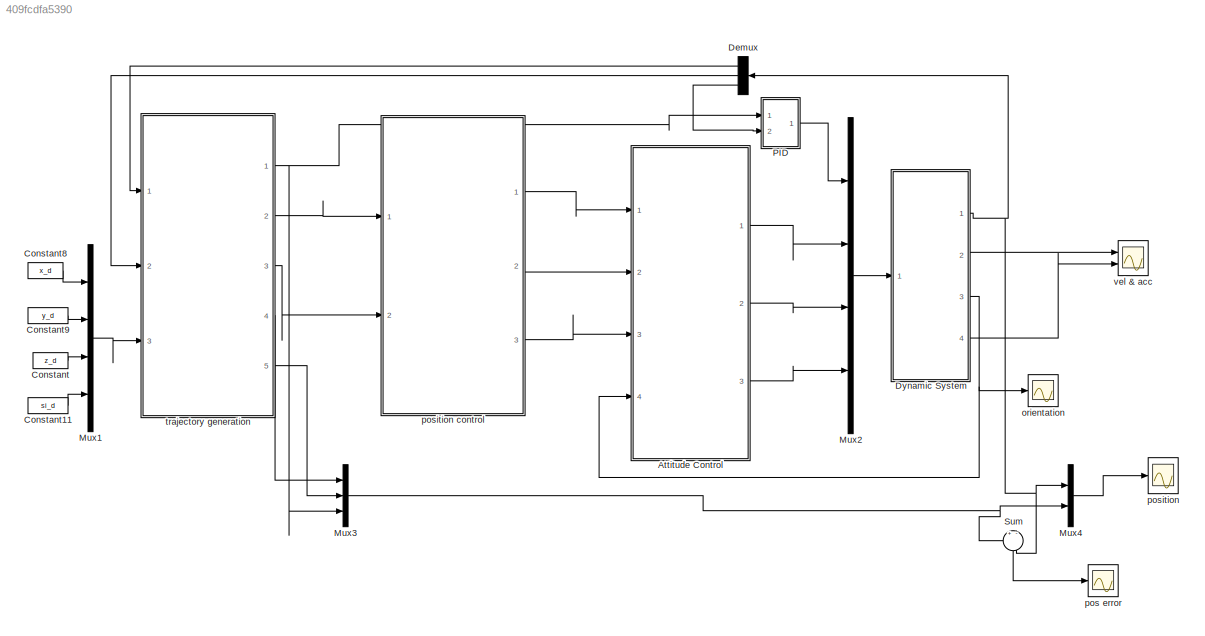
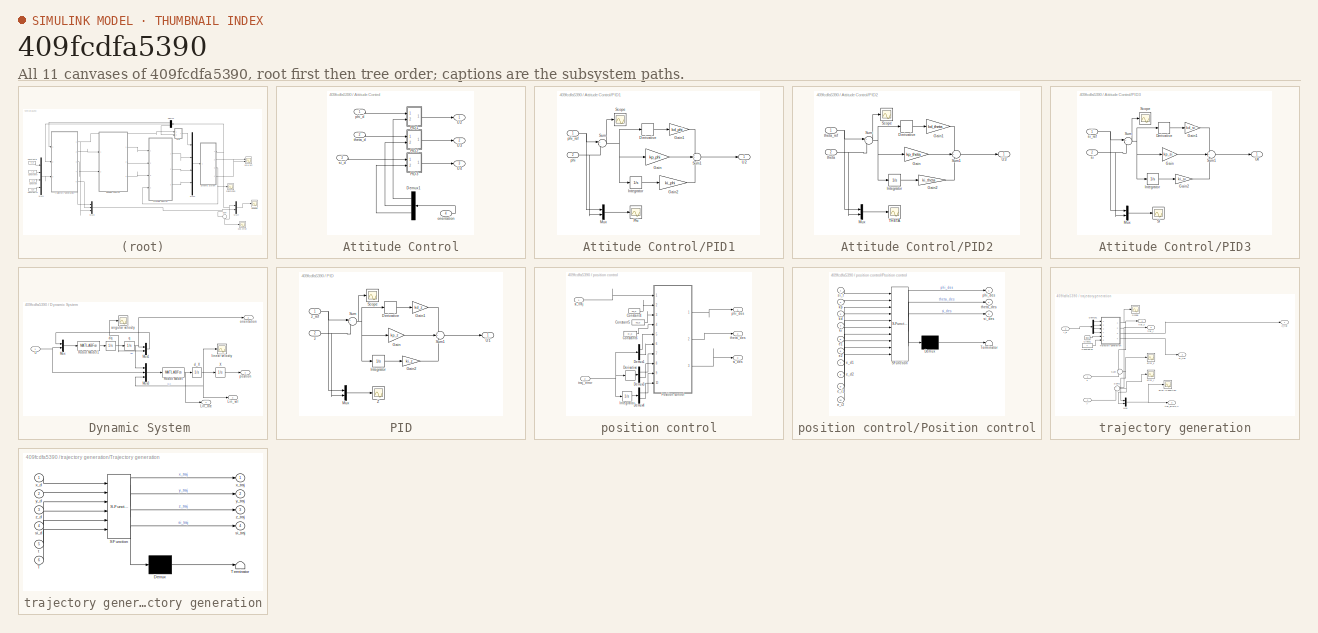
[diagram: thumbnail index - all 11 canvases of the model, root first then tree order]
MODEL slx_409fcdfa5390
KIND model
CONFIG AbsTol = auto
CONFIG EnableMultiTasking = off
CONFIG FixedStep = Ts
CONFIG MaxStep = auto
CONFIG MinStep = auto
CONFIG RelTol = 1e-3
CONFIG SampleTimeConstraint = Unconstrained
CONFIG Solver = ode2
CONFIG SolverName = ode2
CONFIG StartTime = 0.0
CONFIG StopTime = T
BLOCK [SubSystem] Attitude Control
  Ports = [4, 3]
  RequestExecContextInheritance = off
BLOCK [Demux] Attitude Control/Demux1
  DisplayOption = bar
  Outputs = 3
  Ports = [1, 3]
BLOCK [SubSystem] Attitude Control/PID1
  Ports = [2, 1]
  RequestExecContextInheritance = off
BLOCK [Derivative] Attitude Control/PID1/Derivative
BLOCK [Gain] Attitude Control/PID1/Gain
  Gain = kp_phi
  OutDataTypeStr = Inherit: Inherit via internal rule
  ParamDataTypeStr = Inherit: Inherit via internal rule
  SaturateOnIntegerOverflow = off
BLOCK [Gain] Attitude Control/PID1/Gain1
  Gain = kd_phi
  OutDataTypeStr = Inherit: Inherit via internal rule
  ParamDataTypeStr = Inherit: Inherit via internal rule
  SaturateOnIntegerOverflow = off
BLOCK [Gain] Attitude Control/PID1/Gain2
  Gain = ki_phi
  OutDataTypeStr = Inherit: Inherit via internal rule
  ParamDataTypeStr = Inherit: Inherit via internal rule
  SaturateOnIntegerOverflow = off
BLOCK [Integrator] Attitude Control/PID1/Integrator
  Ports = [1, 1]
BLOCK [Mux] Attitude Control/PID1/Mux
  DisplayOption = bar
  Inputs = 2
  Ports = [2, 1]
BLOCK [Scope] Attitude Control/PID1/Phi
  Floating = off
  NumInputPorts = 1
  Ports = [1]
  ScopeSpecificationString = Simulink.scopes.TimeScopeBlockCfg('CurrentConfiguration', extmgr.ConfigurationSet(extmgr.Configuration('Core','General UI',true),extmgr.Configuration('Core','Source UI',true),extmgr.Configuration('Sources','WiredSimulink',true,'DataLoggingVariableName','ScopeData3'),extmgr.Configuration('Visuals','Time Domain',true,'SerializedDisplays',{struct('MinYLimReal','-0.87525','MaxYLimReal','0.87526','YLab...<+1542ch>
BLOCK [Scope] Attitude Control/PID1/Scope
  Floating = off
  NumInputPorts = 1
  Ports = [1]
  ScopeSpecificationString = Simulink.scopes.TimeScopeBlockCfg('CurrentConfiguration', extmgr.ConfigurationSet(extmgr.Configuration('Core','General UI',true),extmgr.Configuration('Core','Source UI',true),extmgr.Configuration('Sources','WiredSimulink',true,'DataLoggingVariableName','ScopeData8'),extmgr.Configuration('Visuals','Time Domain',true,'SerializedDisplays',{struct('MinYLimReal','-1.26894','MaxYLimReal','0.7898','YLabe...<+1360ch>
BLOCK [Sum] Attitude Control/PID1/Sum
  IconShape = round
  InputSameDT = off
  Inputs = +-
  OutDataTypeStr = Inherit: Inherit via internal rule
  Ports = [2, 1]
  SaturateOnIntegerOverflow = off
BLOCK [Sum] Attitude Control/PID1/Sum1
  IconShape = round
  InputSameDT = off
  Inputs = +++
  OutDataTypeStr = Inherit: Inherit via internal rule
  Ports = [3, 1]
  SaturateOnIntegerOverflow = off
BLOCK [Outport] Attitude Control/PID1/U2
  IconDisplay = Port number
BLOCK [Inport] Attitude Control/PID1/phi
  IconDisplay = Port number
  Port = 2
BLOCK [Inport] Attitude Control/PID1/phi_ref
  IconDisplay = Port number
BLOCK [SubSystem] Attitude Control/PID2
  Ports = [2, 1]
  RequestExecContextInheritance = off
BLOCK [Derivative] Attitude Control/PID2/Derivative
BLOCK [Gain] Attitude Control/PID2/Gain
  Gain = kp_theta
  OutDataTypeStr = Inherit: Inherit via internal rule
  ParamDataTypeStr = Inherit: Inherit via internal rule
  SaturateOnIntegerOverflow = off
BLOCK [Gain] Attitude Control/PID2/Gain1
  Gain = kd_theta
  OutDataTypeStr = Inherit: Inherit via internal rule
  ParamDataTypeStr = Inherit: Inherit via internal rule
  SaturateOnIntegerOverflow = off
BLOCK [Gain] Attitude Control/PID2/Gain2
  Gain = ki_theta
  OutDataTypeStr = Inherit: Inherit via internal rule
  ParamDataTypeStr = Inherit: Inherit via internal rule
  SaturateOnIntegerOverflow = off
BLOCK [Integrator] Attitude Control/PID2/Integrator
  Ports = [1, 1]
BLOCK [Mux] Attitude Control/PID2/Mux
  DisplayOption = bar
  Inputs = 2
  Ports = [2, 1]
BLOCK [Scope] Attitude Control/PID2/Scope
  Floating = off
  NumInputPorts = 1
  Ports = [1]
  ScopeSpecificationString = Simulink.scopes.TimeScopeBlockCfg('CurrentConfiguration', extmgr.ConfigurationSet(extmgr.Configuration('Core','General UI',true),extmgr.Configuration('Core','Source UI',true),extmgr.Configuration('Sources','WiredSimulink',true,'DataLoggingVariableName','ScopeData2'),extmgr.Configuration('Visuals','Time Domain',true,'SerializedDisplays',{struct('MinYLimReal','-5.87071','MaxYLimReal','34.66591','YLa...<+1366ch>
BLOCK [Sum] Attitude Control/PID2/Sum
  IconShape = round
  InputSameDT = off
  Inputs = +-
  OutDataTypeStr = Inherit: Inherit via internal rule
  Ports = [2, 1]
  SaturateOnIntegerOverflow = off
BLOCK [Sum] Attitude Control/PID2/Sum1
  IconShape = round
  InputSameDT = off
  Inputs = +++
  OutDataTypeStr = Inherit: Inherit via internal rule
  Ports = [3, 1]
  SaturateOnIntegerOverflow = off
BLOCK [Scope] Attitude Control/PID2/THETA 
  Floating = off
  NumInputPorts = 1
  Ports = [1]
  ScopeSpecificationString = Simulink.scopes.TimeScopeBlockCfg('CurrentConfiguration', extmgr.ConfigurationSet(extmgr.Configuration('Core','General UI',true),extmgr.Configuration('Core','Source UI',true),extmgr.Configuration('Sources','WiredSimulink',true,'DataLoggingVariableName','ScopeData5'),extmgr.Configuration('Visuals','Time Domain',true,'SerializedDisplays',{struct('MinYLimReal','-1.2512','MaxYLimReal','1.26078','YLabe...<+1403ch>
BLOCK [Outport] Attitude Control/PID2/U3
  IconDisplay = Port number
BLOCK [Inport] Attitude Control/PID2/theta
  IconDisplay = Port number
  Port = 2
BLOCK [Inport] Attitude Control/PID2/theta_ref
  IconDisplay = Port number
BLOCK [SubSystem] Attitude Control/PID3
  Ports = [2, 1]
  RequestExecContextInheritance = off
BLOCK [Derivative] Attitude Control/PID3/Derivative
BLOCK [Gain] Attitude Control/PID3/Gain
  Gain = kp_si
  OutDataTypeStr = Inherit: Inherit via internal rule
  ParamDataTypeStr = Inherit: Inherit via internal rule
  SaturateOnIntegerOverflow = off
BLOCK [Gain] Attitude Control/PID3/Gain1
  Gain = kd_si
  OutDataTypeStr = Inherit: Inherit via internal rule
  ParamDataTypeStr = Inherit: Inherit via internal rule
  SaturateOnIntegerOverflow = off
BLOCK [Gain] Attitude Control/PID3/Gain2
  Gain = ki_si
  OutDataTypeStr = Inherit: Inherit via internal rule
  ParamDataTypeStr = Inherit: Inherit via internal rule
  SaturateOnIntegerOverflow = off
BLOCK [Integrator] Attitude Control/PID3/Integrator
  Ports = [1, 1]
BLOCK [Mux] Attitude Control/PID3/Mux
  DisplayOption = bar
  Inputs = 2
  Ports = [2, 1]
BLOCK [Scope] Attitude Control/PID3/SI
  Floating = off
  NumInputPorts = 1
  Ports = [1]
  ScopeSpecificationString = Simulink.scopes.TimeScopeBlockCfg('CurrentConfiguration', extmgr.ConfigurationSet(extmgr.Configuration('Core','General UI',true),extmgr.Configuration('Core','Source UI',true),extmgr.Configuration('Sources','WiredSimulink',true,'DataLoggingVariableName','ScopeData6'),extmgr.Configuration('Visuals','Time Domain',true,'SerializedDisplays',{struct('MinYLimReal','-0.00023','MaxYLimReal','0.00003','YLab...<+1399ch>
BLOCK [Scope] Attitude Control/PID3/Scope
  Floating = off
  NumInputPorts = 1
  Ports = [1]
  ScopeSpecificationString = Simulink.scopes.TimeScopeBlockCfg('CurrentConfiguration', extmgr.ConfigurationSet(extmgr.Configuration('Core','General UI',true),extmgr.Configuration('Core','Source UI',true),extmgr.Configuration('Sources','WiredSimulink',true,'DataLoggingVariableName','ScopeData3'),extmgr.Configuration('Visuals','Time Domain',true,'SerializedDisplays',{struct('MinYLimReal','-0.00001','MaxYLimReal','0.000058','YLa...<+1368ch>
BLOCK [Sum] Attitude Control/PID3/Sum
  IconShape = round
  InputSameDT = off
  Inputs = +-
  OutDataTypeStr = Inherit: Inherit via internal rule
  Ports = [2, 1]
  SaturateOnIntegerOverflow = off
BLOCK [Sum] Attitude Control/PID3/Sum1
  IconShape = round
  InputSameDT = off
  Inputs = +++
  OutDataTypeStr = Inherit: Inherit via internal rule
  Ports = [3, 1]
  SaturateOnIntegerOverflow = off
BLOCK [Outport] Attitude Control/PID3/U4 
  IconDisplay = Port number
BLOCK [Inport] Attitude Control/PID3/si
  IconDisplay = Port number
  Port = 2
BLOCK [Inport] Attitude Control/PID3/si_ref
  IconDisplay = Port number
BLOCK [Outport] Attitude Control/U2
  IconDisplay = Port number
BLOCK [Outport] Attitude Control/U3
  IconDisplay = Port number
  Port = 2
BLOCK [Outport] Attitude Control/U4
  IconDisplay = Port number
  Port = 3
BLOCK [Inport] Attitude Control/orientation
  IconDisplay = Port number
  Port = 4
BLOCK [Inport] Attitude Control/phi_d
  IconDisplay = Port number
BLOCK [Inport] Attitude Control/si_d
  IconDisplay = Port number
  Port = 3
BLOCK [Inport] Attitude Control/theta_d
  IconDisplay = Port number
  Port = 2
BLOCK [Constant] Constant
  Value = z_d
BLOCK [Constant] Constant11
  Value = si_d
BLOCK [Constant] Constant8
  Value = x_d
BLOCK [Constant] Constant9
  Value = y_d
BLOCK [Demux] Demux
  DisplayOption = bar
  Outputs = 3
  Ports = [1, 3]
BLOCK [SubSystem] Dynamic System 
  Ports = [1, 4]
  RequestExecContextInheritance = off
BLOCK [Outport] Dynamic System /Lin_acc
  IconDisplay = Port number
  Port = 4
BLOCK [Outport] Dynamic System /Lin_vel
  IconDisplay = Port number
  Port = 2
BLOCK [Mux] Dynamic System /Mux
  DisplayOption = bar
  Inputs = 2
  Ports = [2, 1]
BLOCK [Mux] Dynamic System /Mux1
  DisplayOption = bar
  Inputs = 2
  Ports = [2, 1]
BLOCK [Mux] Dynamic System /Mux3
  DisplayOption = bar
  Inputs = 3
  Ports = [3, 1]
BLOCK [MATLABFcn] Dynamic System /Robot Model
  MATLABFcn = dronePos(u(1:3),u(4:7),u(8:10),droneparam)
  OutputDimensions = 3
  Ports = [1, 1]
BLOCK [MATLABFcn] Dynamic System /Robot Model1
  MATLABFcn = droneOrientation(u(1:3),u(4:6),u(7:10),droneparam)
  OutputDimensions = 3
  Ports = [1, 1]
BLOCK [Inport] Dynamic System /U
  IconDisplay = Port number
BLOCK [Integrator] Dynamic System /X
  InitialCondition = droneparam.X0
  Ports = [1, 1]
BLOCK [Scope] Dynamic System /angular velocity
  Floating = off
  NumInputPorts = 1
  Ports = [1]
  ScopeSpecificationString = Simulink.scopes.TimeScopeBlockCfg('CurrentConfiguration', extmgr.ConfigurationSet(extmgr.Configuration('Core','General UI',true),extmgr.Configuration('Core','Source UI',true),extmgr.Configuration('Sources','WiredSimulink',true,'DataLoggingVariableName','ScopeData4'),extmgr.Configuration('Visuals','Time Domain',true,'SerializedDisplays',{struct('MinYLimReal','-101.86434','MaxYLimReal','55.63755','Y...<+1389ch>
BLOCK [Integrator] Dynamic System /d_X
  InitialCondition = droneparam.X0
  Ports = [1, 1]
BLOCK [Integrator] Dynamic System /dq
  InitialCondition = droneparam.q0
  Ports = [1, 1]
BLOCK [Scope] Dynamic System /linear velocity 
  Floating = off
  NumInputPorts = 1
  Ports = [1]
  ScopeSpecificationString = Simulink.scopes.TimeScopeBlockCfg('CurrentConfiguration', extmgr.ConfigurationSet(extmgr.Configuration('Core','General UI',true),extmgr.Configuration('Core','Source UI',true),extmgr.Configuration('Sources','WiredSimulink',true,'DataLoggingVariableName','ScopeData2'),extmgr.Configuration('Visuals','Time Domain',true,'SerializedDisplays',{struct('MinYLimReal','-28.48335','MaxYLimReal','45.43392','YL...<+1412ch>
BLOCK [Outport] Dynamic System /orientation
  IconDisplay = Port number
  Port = 3
BLOCK [Outport] Dynamic System /position 
  IconDisplay = Port number
BLOCK [Integrator] Dynamic System /q
  InitialCondition = droneparam.q0
  Ports = [1, 1]
BLOCK [Mux] Mux1
  DisplayOption = bar
  Ports = [4, 1]
BLOCK [Mux] Mux2
  DisplayOption = bar
  Ports = [4, 1]
BLOCK [Mux] Mux3
  DisplayOption = bar
  Inputs = 3
  Ports = [3, 1]
BLOCK [Mux] Mux4
  DisplayOption = bar
  Inputs = 2
  Ports = [2, 1]
BLOCK [SubSystem] PID
  Ports = [2, 1]
  RequestExecContextInheritance = off
BLOCK [Derivative] PID/Derivative
BLOCK [Gain] PID/Gain
  Gain = kp_z
  OutDataTypeStr = Inherit: Inherit via internal rule
  ParamDataTypeStr = Inherit: Inherit via internal rule
  SaturateOnIntegerOverflow = off
BLOCK [Gain] PID/Gain1
  Gain = kd_z
  OutDataTypeStr = Inherit: Inherit via internal rule
  ParamDataTypeStr = Inherit: Inherit via internal rule
  SaturateOnIntegerOverflow = off
BLOCK [Gain] PID/Gain2
  Gain = ki_z
  OutDataTypeStr = Inherit: Inherit via internal rule
  ParamDataTypeStr = Inherit: Inherit via internal rule
  SaturateOnIntegerOverflow = off
BLOCK [Integrator] PID/Integrator
  Ports = [1, 1]
BLOCK [Mux] PID/Mux
  DisplayOption = bar
  Inputs = 2
  Ports = [2, 1]
BLOCK [Scope] PID/Scope
  Floating = off
  NumInputPorts = 1
  Ports = [1]
  ScopeSpecificationString = Simulink.scopes.TimeScopeBlockCfg('CurrentConfiguration', extmgr.ConfigurationSet(extmgr.Configuration('Core','General UI',true),extmgr.Configuration('Core','Source UI',true),extmgr.Configuration('Sources','WiredSimulink',true,'DataLoggingVariableName','ScopeData1'),extmgr.Configuration('Visuals','Time Domain',true,'SerializedDisplays',{struct('MinYLimReal','-17.03986','MaxYLimReal','57.44887','YL...<+1368ch>
BLOCK [Sum] PID/Sum
  IconShape = round
  InputSameDT = off
  Inputs = +-
  OutDataTypeStr = Inherit: Inherit via internal rule
  Ports = [2, 1]
  SaturateOnIntegerOverflow = off
BLOCK [Sum] PID/Sum1
  IconShape = round
  InputSameDT = off
  Inputs = +++
  OutDataTypeStr = Inherit: Inherit via internal rule
  Ports = [3, 1]
  SaturateOnIntegerOverflow = off
BLOCK [Outport] PID/U1
  IconDisplay = Port number
BLOCK [Scope] PID/Z
  Floating = off
  NumInputPorts = 1
  Ports = [1]
  ScopeSpecificationString = Simulink.scopes.TimeScopeBlockCfg('CurrentConfiguration', extmgr.ConfigurationSet(extmgr.Configuration('Core','General UI',true),extmgr.Configuration('Core','Source UI',true),extmgr.Configuration('Sources','WiredSimulink',true,'DataLoggingVariableName','ScopeData4'),extmgr.Configuration('Visuals','Time Domain',true),extmgr.Configuration('Tools','Plot Navigation',true),extmgr.Configuration('Tools',...<+40ch>
BLOCK [Inport] PID/z
  IconDisplay = Port number
  Port = 2
BLOCK [Inport] PID/z_ref
  IconDisplay = Port number
BLOCK [Sum] Sum
  IconShape = round
  InputSameDT = off
  Inputs = +-
  OutDataTypeStr = Inherit: Inherit via internal rule
  Ports = [2, 1]
  SaturateOnIntegerOverflow = off
BLOCK [Scope] orientation
  Floating = off
  NumInputPorts = 1
  Ports = [1]
  ScopeSpecificationString = Simulink.scopes.TimeScopeBlockCfg('CurrentConfiguration', extmgr.ConfigurationSet(extmgr.Configuration('Core','General UI',true),extmgr.Configuration('Core','Source UI',true),extmgr.Configuration('Sources','WiredSimulink',true,'DataLoggingVariableName','ScopeData5'),extmgr.Configuration('Visuals','Time Domain',true,'SerializedDisplays',{struct('MinYLimReal','-0.53228','MaxYLimReal','1.16763','YLab...<+1492ch>
BLOCK [Scope] pos error 
  Floating = off
  NumInputPorts = 1
  Ports = [1]
  ScopeSpecificationString = Simulink.scopes.TimeScopeBlockCfg('CurrentConfiguration', extmgr.ConfigurationSet(extmgr.Configuration('Core','General UI',true),extmgr.Configuration('Core','Source UI',true),extmgr.Configuration('Sources','WiredSimulink',true,'DataLoggingVariableName','ScopeData1'),extmgr.Configuration('Visuals','Time Domain',true,'SerializedDisplays',{struct('MinYLimReal','-0.53228','MaxYLimReal','1.16763','YLab...<+1450ch>
BLOCK [Scope] position 
  Floating = off
  NumInputPorts = 1
  Ports = [1]
  ScopeSpecificationString = Simulink.scopes.TimeScopeBlockCfg('CurrentConfiguration', extmgr.ConfigurationSet(extmgr.Configuration('Core','General UI',true,'FigureColor',[1 1 1]),extmgr.Configuration('Core','Source UI',true),extmgr.Configuration('Sources','WiredSimulink',true,'DataLoggingVariableName','ScopeData6'),extmgr.Configuration('Visuals','Time Domain',true,'SerializedDisplays',{struct('MinYLimReal','-9.32881','MaxYLi...<+3616ch>
BLOCK [SubSystem] position control
  Ports = [2, 3]
  RequestExecContextInheritance = off
BLOCK [Constant] position control/Constant4
  Value = kp_d
BLOCK [Constant] position control/Constant5
  Value = kd_d
BLOCK [Constant] position control/Constant6
  Value = ki_d
BLOCK [Demux] position control/Demux1
  DisplayOption = bar
  Outputs = 2
  Ports = [1, 2]
BLOCK [Demux] position control/Demux3
  DisplayOption = bar
  Outputs = 2
  Ports = [1, 2]
BLOCK [Demux] position control/Demux4
  DisplayOption = bar
  Outputs = 2
  Ports = [1, 2]
BLOCK [Derivative] position control/Derivative
BLOCK [Integrator] position control/Integrator
  Ports = [1, 1]
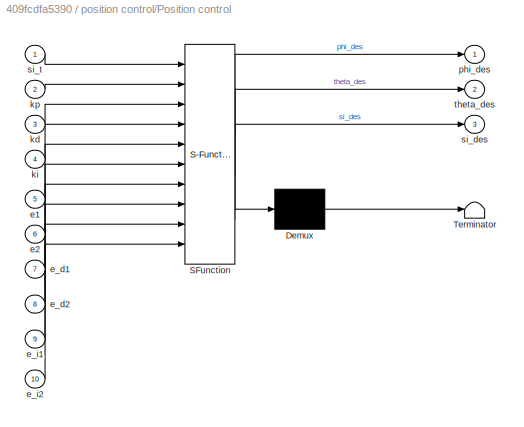
BLOCK [SubSystem] position control/Position control
  ErrorFcn = Stateflow.Translate.translate
  PermitHierarchicalResolution = ExplicitOnly
  Ports = [10, 3]
  RequestExecContextInheritance = off
  SFBlockType = MATLAB Function
  TreatAsAtomicUnit = on
BLOCK [Demux] position control/Position control/ Demux 
  Outputs = 1
  Ports = [1, 1]
BLOCK [S-Function] position control/Position control/ SFunction 
  EnableBusSupport = on
  FunctionName = sf_sfun
  PortCounts = [10 4]
  Ports = [10, 4]
  SFcnIsStateOwnerBlock = off
  SFunctionDeploymentMode = off
  Tag = Stateflow S-Function Drone_pos_ctrl 2
BLOCK [Terminator] position control/Position control/ Terminator 
BLOCK [Inport] position control/Position control/e1
  IconDisplay = Port number
  Port = 5
BLOCK [Inport] position control/Position control/e2
  IconDisplay = Port number
  Port = 6
BLOCK [Inport] position control/Position control/e_d1
  IconDisplay = Port number
  Port = 7
BLOCK [Inport] position control/Position control/e_d2
  IconDisplay = Port number
  Port = 8
BLOCK [Inport] position control/Position control/e_i1
  IconDisplay = Port number
  Port = 9
BLOCK [Inport] position control/Position control/e_i2
  IconDisplay = Port number
  Port = 10
BLOCK [Inport] position control/Position control/kd
  IconDisplay = Port number
  Port = 3
BLOCK [Inport] position control/Position control/ki
  IconDisplay = Port number
  Port = 4
BLOCK [Inport] position control/Position control/kp
  IconDisplay = Port number
  Port = 2
BLOCK [Outport] position control/Position control/phi_des
  IconDisplay = Port number
BLOCK [Outport] position control/Position control/si_des
  IconDisplay = Port number
  Port = 3
BLOCK [Inport] position control/Position control/si_t
  IconDisplay = Port number
BLOCK [Outport] position control/Position control/theta_des
  IconDisplay = Port number
  Port = 2
BLOCK [Outport] position control/phi_des
  IconDisplay = Port number
BLOCK [Outport] position control/si_des
  IconDisplay = Port number
  Port = 3
BLOCK [Inport] position control/si_traj
  IconDisplay = Port number
BLOCK [Outport] position control/theta_des
  IconDisplay = Port number
  Port = 2
BLOCK [Inport] position control/traj_error
  IconDisplay = Port number
  Port = 2
BLOCK [SubSystem] trajectory generation
  Ports = [3, 5]
  RequestExecContextInheritance = off
BLOCK [Clock] trajectory generation/Clock1
BLOCK [Constant] trajectory generation/Constant10
  Value = T
BLOCK [Demux] trajectory generation/Demux1
  DisplayOption = bar
  Ports = [1, 4]
BLOCK [Mux] trajectory generation/Mux
  DisplayOption = bar
  Inputs = 2
  Ports = [2, 1]
BLOCK [Scope] trajectory generation/Scope
  Floating = off
  NumInputPorts = 1
  Ports = [1]
  ScopeSpecificationString = Simulink.scopes.TimeScopeBlockCfg('CurrentConfiguration', extmgr.ConfigurationSet(extmgr.Configuration('Core','General UI',true),extmgr.Configuration('Core','Source UI',true),extmgr.Configuration('Sources','WiredSimulink',true,'DataLoggingVariableName','ScopeData3'),extmgr.Configuration('Visuals','Time Domain',true,'SerializedDisplays',{struct('MinYLimReal','-2.5','MaxYLimReal','22.5','YLabelReal'...<+1392ch>
BLOCK [Sum] trajectory generation/Sum
  IconShape = round
  InputSameDT = off
  Inputs = +-
  OutDataTypeStr = Inherit: Inherit via internal rule
  Ports = [2, 1]
  SaturateOnIntegerOverflow = off
BLOCK [Sum] trajectory generation/Sum1
  IconShape = round
  InputSameDT = off
  Inputs = +-
  OutDataTypeStr = Inherit: Inherit via internal rule
  Ports = [2, 1]
  SaturateOnIntegerOverflow = off
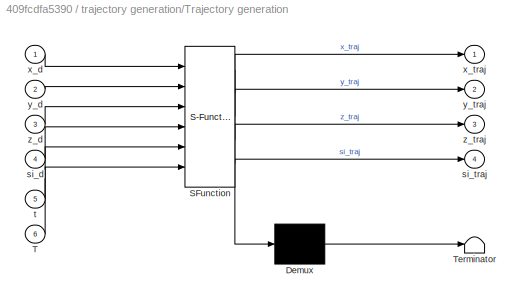
BLOCK [SubSystem] trajectory generation/Trajectory generation
  ErrorFcn = Stateflow.Translate.translate
  PermitHierarchicalResolution = ExplicitOnly
  Ports = [6, 4]
  RequestExecContextInheritance = off
  SFBlockType = MATLAB Function
  TreatAsAtomicUnit = on
BLOCK [Demux] trajectory generation/Trajectory generation/ Demux 
  Outputs = 1
  Ports = [1, 1]
BLOCK [S-Function] trajectory generation/Trajectory generation/ SFunction 
  EnableBusSupport = on
  FunctionName = sf_sfun
  PortCounts = [6 5]
  Ports = [6, 5]
  SFcnIsStateOwnerBlock = off
  SFunctionDeploymentMode = off
  Tag = Stateflow S-Function Drone_pos_ctrl 1
BLOCK [Terminator] trajectory generation/Trajectory generation/ Terminator 
BLOCK [Inport] trajectory generation/Trajectory generation/T
  IconDisplay = Port number
  Port = 6
BLOCK [Inport] trajectory generation/Trajectory generation/si_d
  IconDisplay = Port number
  Port = 4
BLOCK [Outport] trajectory generation/Trajectory generation/si_traj
  IconDisplay = Port number
  Port = 4
BLOCK [Inport] trajectory generation/Trajectory generation/t
  IconDisplay = Port number
  Port = 5
BLOCK [Inport] trajectory generation/Trajectory generation/x_d
  IconDisplay = Port number
BLOCK [Outport] trajectory generation/Trajectory generation/x_traj
  IconDisplay = Port number
BLOCK [Inport] trajectory generation/Trajectory generation/y_d
  IconDisplay = Port number
  Port = 2
BLOCK [Outport] trajectory generation/Trajectory generation/y_traj
  IconDisplay = Port number
  Port = 2
BLOCK [Inport] trajectory generation/Trajectory generation/z_d
  IconDisplay = Port number
  Port = 3
BLOCK [Outport] trajectory generation/Trajectory generation/z_traj
  IconDisplay = Port number
  Port = 3
BLOCK [Scope] trajectory generation/error in position
  Floating = off
  NumInputPorts = 1
  Ports = [1]
  ScopeSpecificationString = Simulink.scopes.TimeScopeBlockCfg('CurrentConfiguration', extmgr.ConfigurationSet(extmgr.Configuration('Core','General UI',true,'FigureColor',[1 1 1]),extmgr.Configuration('Core','Source UI',true),extmgr.Configuration('Sources','WiredSimulink',true,'DataLoggingVariableName','ScopeData5'),extmgr.Configuration('Visuals','Time Domain',true,'SerializedDisplays',{struct('MinYLimReal','-0.51194','MaxYLi...<+1730ch>
BLOCK [Scope] trajectory generation/error_x
  Floating = off
  NumInputPorts = 1
  Ports = [1]
  ScopeSpecificationString = Simulink.scopes.TimeScopeBlockCfg('CurrentConfiguration', extmgr.ConfigurationSet(extmgr.Configuration('Core','General UI',true),extmgr.Configuration('Core','Source UI',true),extmgr.Configuration('Sources','WiredSimulink',true,'DataLoggingVariableName','ScopeData1'),extmgr.Configuration('Visuals','Time Domain',true,'SerializedDisplays',{struct('MinYLimReal','-1.31667','MaxYLimReal','11.85004','YLa...<+1395ch>
BLOCK [Scope] trajectory generation/error_y
  Floating = off
  NumInputPorts = 1
  Ports = [1]
  ScopeSpecificationString = Simulink.scopes.TimeScopeBlockCfg('CurrentConfiguration', extmgr.ConfigurationSet(extmgr.Configuration('Core','General UI',true),extmgr.Configuration('Core','Source UI',true),extmgr.Configuration('Sources','WiredSimulink',true,'DataLoggingVariableName','ScopeData2'),extmgr.Configuration('Visuals','Time Domain',true,'SerializedDisplays',{struct('MinYLimReal','-2.03842','MaxYLimReal','18.34579','YLa...<+1396ch>
BLOCK [Inport] trajectory generation/r_d
  IconDisplay = Port number
  Port = 3
BLOCK [Outport] trajectory generation/si_traj
  IconDisplay = Port number
  Port = 2
BLOCK [Outport] trajectory generation/traj_erro(x,y)
  IconDisplay = Port number
  Port = 3
BLOCK [Outport] trajectory generation/traj_x
  IconDisplay = Port number
  Port = 4
BLOCK [Outport] trajectory generation/traj_y
  IconDisplay = Port number
  Port = 5
BLOCK [Inport] trajectory generation/x
  IconDisplay = Port number
BLOCK [Inport] trajectory generation/y
  IconDisplay = Port number
  Port = 2
BLOCK [Outport] trajectory generation/z_traj
  IconDisplay = Port number
BLOCK [Scope] vel & acc
  Floating = off
  NumInputPorts = 2
  Ports = [2]
  ScopeSpecificationString = Simulink.scopes.TimeScopeBlockCfg('CurrentConfiguration', extmgr.ConfigurationSet(extmgr.Configuration('Core','General UI',true,'FigureColor',[1 1 1]),extmgr.Configuration('Core','Source UI',true),extmgr.Configuration('Sources','WiredSimulink',true,'DataLoggingVariableName','ScopeData1'),extmgr.Configuration('Visuals','Time Domain',true,'SerializedDisplays',{struct('MinYLimReal','-0.78645','MaxYLi...<+3733ch>
LINE Attitude Control/Demux1:1 -> Attitude Control/PID1:2
LINE Attitude Control/Demux1:2 -> Attitude Control/PID2:2
LINE Attitude Control/Demux1:3 -> Attitude Control/PID3:2
LINE Attitude Control/PID1/Derivative:1 -> Attitude Control/PID1/Gain1:1
LINE Attitude Control/PID1/Gain1:1 -> Attitude Control/PID1/Sum1:1
LINE Attitude Control/PID1/Gain2:1 -> Attitude Control/PID1/Sum1:3
LINE Attitude Control/PID1/Gain:1 -> Attitude Control/PID1/Sum1:2
LINE Attitude Control/PID1/Integrator:1 -> Attitude Control/PID1/Gain2:1
LINE Attitude Control/PID1/Mux:1 -> Attitude Control/PID1/Phi:1
LINE Attitude Control/PID1/Sum1:1 -> Attitude Control/PID1/U2:1
NET Attitude Control/PID1/Sum:1 -> Attitude Control/PID1/Derivative:1, Attitude Control/PID1/Gain:1, Attitude Control/PID1/Integrator:1, Attitude Control/PID1/Scope:1
NET Attitude Control/PID1/phi:1 -> Attitude Control/PID1/Mux:2, Attitude Control/PID1/Sum:2
NET Attitude Control/PID1/phi_ref:1 -> Attitude Control/PID1/Mux:1, Attitude Control/PID1/Sum:1
LINE Attitude Control/PID1:1 -> Attitude Control/U2:1
LINE Attitude Control/PID2/Derivative:1 -> Attitude Control/PID2/Gain1:1
LINE Attitude Control/PID2/Gain1:1 -> Attitude Control/PID2/Sum1:1
LINE Attitude Control/PID2/Gain2:1 -> Attitude Control/PID2/Sum1:3
LINE Attitude Control/PID2/Gain:1 -> Attitude Control/PID2/Sum1:2
LINE Attitude Control/PID2/Integrator:1 -> Attitude Control/PID2/Gain2:1
LINE Attitude Control/PID2/Mux:1 -> Attitude Control/PID2/THETA :1
LINE Attitude Control/PID2/Sum1:1 -> Attitude Control/PID2/U3:1
NET Attitude Control/PID2/Sum:1 -> Attitude Control/PID2/Derivative:1, Attitude Control/PID2/Gain:1, Attitude Control/PID2/Integrator:1, Attitude Control/PID2/Scope:1
NET Attitude Control/PID2/theta:1 -> Attitude Control/PID2/Mux:2, Attitude Control/PID2/Sum:2
NET Attitude Control/PID2/theta_ref:1 -> Attitude Control/PID2/Mux:1, Attitude Control/PID2/Sum:1
LINE Attitude Control/PID2:1 -> Attitude Control/U3:1
LINE Attitude Control/PID3/Derivative:1 -> Attitude Control/PID3/Gain1:1
LINE Attitude Control/PID3/Gain1:1 -> Attitude Control/PID3/Sum1:1
LINE Attitude Control/PID3/Gain2:1 -> Attitude Control/PID3/Sum1:3
LINE Attitude Control/PID3/Gain:1 -> Attitude Control/PID3/Sum1:2
LINE Attitude Control/PID3/Integrator:1 -> Attitude Control/PID3/Gain2:1
LINE Attitude Control/PID3/Mux:1 -> Attitude Control/PID3/SI:1
LINE Attitude Control/PID3/Sum1:1 -> Attitude Control/PID3/U4 :1
NET Attitude Control/PID3/Sum:1 -> Attitude Control/PID3/Derivative:1, Attitude Control/PID3/Gain:1, Attitude Control/PID3/Integrator:1, Attitude Control/PID3/Scope:1
NET Attitude Control/PID3/si:1 -> Attitude Control/PID3/Mux:2, Attitude Control/PID3/Sum:2
NET Attitude Control/PID3/si_ref:1 -> Attitude Control/PID3/Mux:1, Attitude Control/PID3/Sum:1
LINE Attitude Control/PID3:1 -> Attitude Control/U4:1
LINE Attitude Control/orientation:1 -> Attitude Control/Demux1:1
LINE Attitude Control/phi_d:1 -> Attitude Control/PID1:1
LINE Attitude Control/si_d:1 -> Attitude Control/PID3:1
LINE Attitude Control/theta_d:1 -> Attitude Control/PID2:1
LINE Attitude Control:1 -> Mux2:2
LINE Attitude Control:2 -> Mux2:3
LINE Attitude Control:3 -> Mux2:4
LINE Constant11:1 -> Mux1:4
LINE Constant8:1 -> Mux1:1
LINE Constant9:1 -> Mux1:2
LINE Constant:1 -> Mux1:3
LINE Demux:1 -> trajectory generation:1
LINE Demux:2 -> trajectory generation:2
LINE Demux:3 -> PID:2
LINE Dynamic System /Mux1:1 -> Dynamic System /Mux:1
LINE Dynamic System /Mux3:1 -> Dynamic System /Robot Model:1
LINE Dynamic System /Mux:1 -> Dynamic System /Robot Model1:1
LINE Dynamic System /Robot Model1:1 -> Dynamic System /dq:1
NET Dynamic System /Robot Model:1 -> Dynamic System /Lin_acc:1, Dynamic System /d_X:1
NET Dynamic System /U:1 -> Dynamic System /Mux3:2, Dynamic System /Mux:2
LINE Dynamic System /X:1 -> Dynamic System /position :1
NET Dynamic System /d_X:1 -> Dynamic System /Lin_vel:1, Dynamic System /Mux3:3, Dynamic System /X:1, Dynamic System /linear velocity :1
NET Dynamic System /dq:1 -> Dynamic System /Mux1:2, Dynamic System /angular velocity:1, Dynamic System /q:1
NET Dynamic System /q:1 -> Dynamic System /Mux1:1, Dynamic System /Mux3:1, Dynamic System /orientation:1
NET Dynamic System :1 -> Demux:1, Mux4:1, Sum:2
LINE Dynamic System :2 -> vel & acc:1
NET Dynamic System :3 -> Attitude Control:4, orientation:1
LINE Dynamic System :4 -> vel & acc:2
LINE Mux1:1 -> trajectory generation:3
LINE Mux2:1 -> Dynamic System :1
NET Mux3:1 -> Mux4:2, Sum:1
LINE Mux4:1 -> position :1
LINE PID/Derivative:1 -> PID/Gain1:1
LINE PID/Gain1:1 -> PID/Sum1:1
LINE PID/Gain2:1 -> PID/Sum1:3
LINE PID/Gain:1 -> PID/Sum1:2
LINE PID/Integrator:1 -> PID/Gain2:1
LINE PID/Mux:1 -> PID/Z:1
LINE PID/Sum1:1 -> PID/U1:1
NET PID/Sum:1 -> PID/Derivative:1, PID/Gain:1, PID/Integrator:1, PID/Scope:1
NET PID/z:1 -> PID/Mux:2, PID/Sum:2
NET PID/z_ref:1 -> PID/Mux:1, PID/Sum:1
LINE PID:1 -> Mux2:1
LINE Sum:1 -> pos error :1
LINE position control/Constant4:1 -> position control/Position control:2
LINE position control/Constant5:1 -> position control/Position control:3
LINE position control/Constant6:1 -> position control/Position control:4
LINE position control/Demux1:1 -> position control/Position control:5
LINE position control/Demux1:2 -> position control/Position control:6
LINE position control/Demux3:1 -> position control/Position control:7
LINE position control/Demux3:2 -> position control/Position control:8
LINE position control/Demux4:1 -> position control/Position control:9
LINE position control/Demux4:2 -> position control/Position control:10
LINE position control/Derivative:1 -> position control/Demux3:1
LINE position control/Integrator:1 -> position control/Demux4:1
LINE position control/Position control:1 -> position control/phi_des:1
LINE position control/Position control:2 -> position control/theta_des:1
LINE position control/Position control:3 -> position control/si_des:1
LINE position control/si_traj:1 -> position control/Position control:1
NET position control/traj_error:1 -> position control/Demux1:1, position control/Derivative:1, position control/Integrator:1
LINE position control:1 -> Attitude Control:1
LINE position control:2 -> Attitude Control:2
LINE position control:3 -> Attitude Control:3
LINE trajectory generation/Clock1:1 -> trajectory generation/Trajectory generation:5
LINE trajectory generation/Constant10:1 -> trajectory generation/Trajectory generation:6
LINE trajectory generation/Demux1:1 -> trajectory generation/Trajectory generation:1
LINE trajectory generation/Demux1:2 -> trajectory generation/Trajectory generation:2
LINE trajectory generation/Demux1:3 -> trajectory generation/Trajectory generation:3
LINE trajectory generation/Demux1:4 -> trajectory generation/Trajectory generation:4
NET trajectory generation/Mux:1 -> trajectory generation/error in position:1, trajectory generation/traj_erro(x,y):1
NET trajectory generation/Sum1:1 -> trajectory generation/Mux:2, trajectory generation/error_y:1
NET trajectory generation/Sum:1 -> trajectory generation/Mux:1, trajectory generation/error_x:1
NET trajectory generation/Trajectory generation:1 -> trajectory generation/Scope:1, trajectory generation/Sum:1, trajectory generation/traj_x:1
NET trajectory generation/Trajectory generation:2 -> trajectory generation/Sum1:1, trajectory generation/traj_y:1
LINE trajectory generation/Trajectory generation:3 -> trajectory generation/z_traj:1
LINE trajectory generation/Trajectory generation:4 -> trajectory generation/si_traj:1
LINE trajectory generation/r_d:1 -> trajectory generation/Demux1:1
LINE trajectory generation/x:1 -> trajectory generation/Sum:2
LINE trajectory generation/y:1 -> trajectory generation/Sum1:2
NET trajectory generation:1 -> Mux3:3, PID:1
LINE trajectory generation:2 -> position control:1
LINE trajectory generation:3 -> position control:2
LINE trajectory generation:4 -> Mux3:1
LINE trajectory generation:5 -> Mux3:2
note: NET lines group one-source signal fan-out (src -> all destinations, sorted); 1:1 wires keep LINE
CHART trajectory generation/Trajectory generation states=1 transitions=1
  STATE_LABEL 'eML_blk_kernel()'
  STATE_LABEL 'SCRIPT:\nfunction [x_traj,y_traj,z_traj,si_traj] = fcn(x_d,y_d,z_d,si_d,t,T)\n  % min velocity trajectory\n    x_traj = x_d*t^2/T^2;\n   y_traj = y_d*t^2/T^2;\n    si_traj = si_d*t^2/T^2;\n    z_traj = z_d*t^2/T^2;\n    \n     % min acc trajectory\n    %x_traj = x_d*t^3/T^3;\n    %y_traj = y_d*t^3/T^3;\n    %si_traj = si_d*t^3/T^3;\n    %z_traj = z_d*t^3/T^3;\n    \n    %min distance traj\n    %x_traj = x_d*t/T;...<+76ch>'
CHART position control/Position control states=1 transitions=1
  STATE_LABEL 'eML_blk_kernel()'
  STATE_LABEL 'SCRIPT:\nfunction [phi_des,theta_des,si_des] = fcn(si_t,kp,kd,ki,e1,e2,e_d1,e_d2,e_i1,e_i2)\n        e = [e1 e2];\n        e_d = [e_d1 e_d2];\n        e_i = [e_i1 e_i2];\n   \n    \n    ddr_des = kd*e_d + kp*e + ki*e_i;\n    \n    phi_des = (ddr_des(1)*sin(si_t) - ddr_des(2)*cos(si_t))/9.8;\n    \n    theta_des = (ddr_des(1)*cos(si_t) + ddr_des(2)*sin(si_t))/9.8;\n    \n    si_des = si_t;\nend\n'
